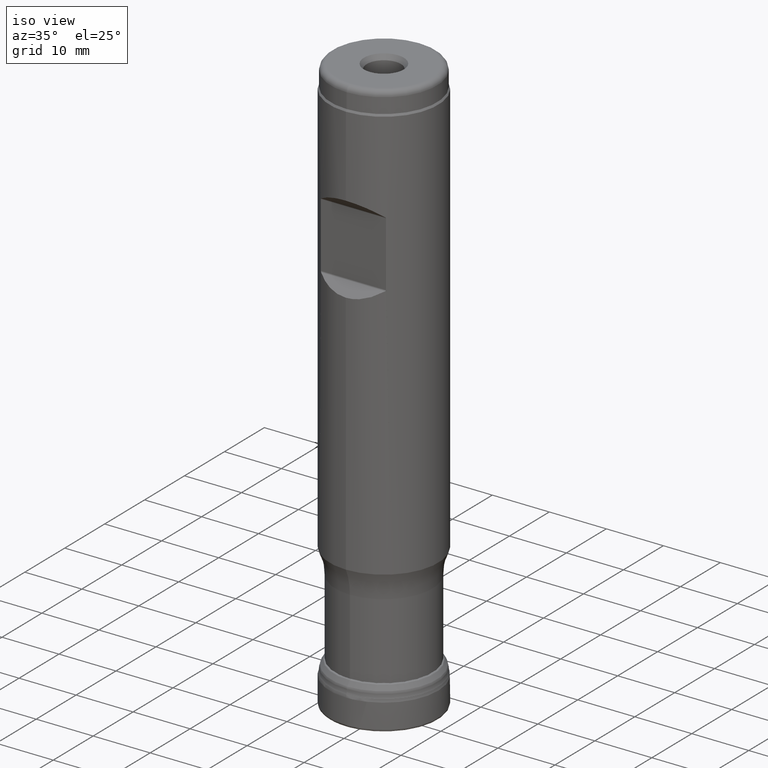
[diagram: clean part render]
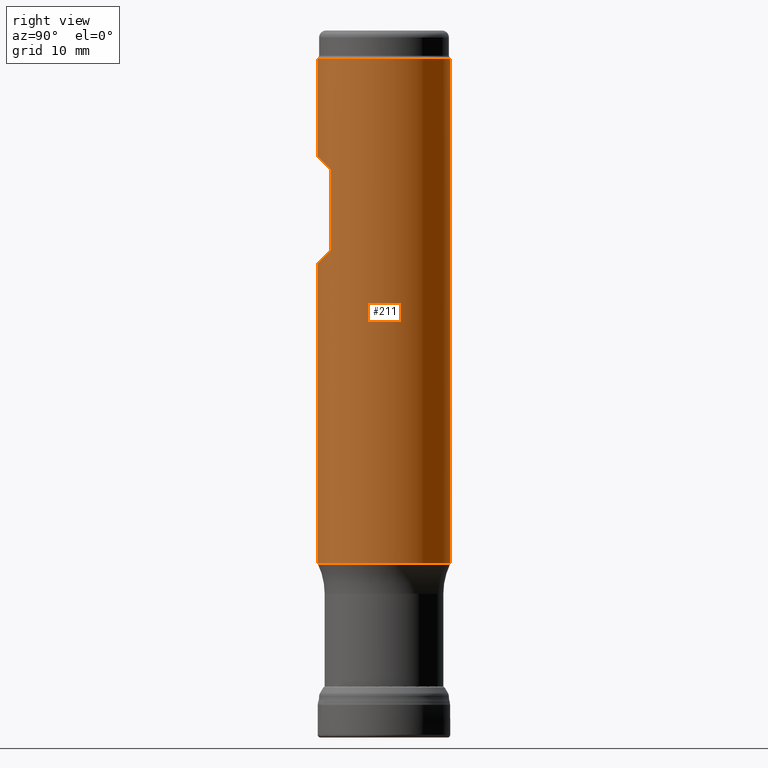
[diagram: tour spotlight — one face highlighted and labeled with its STEP entity id]
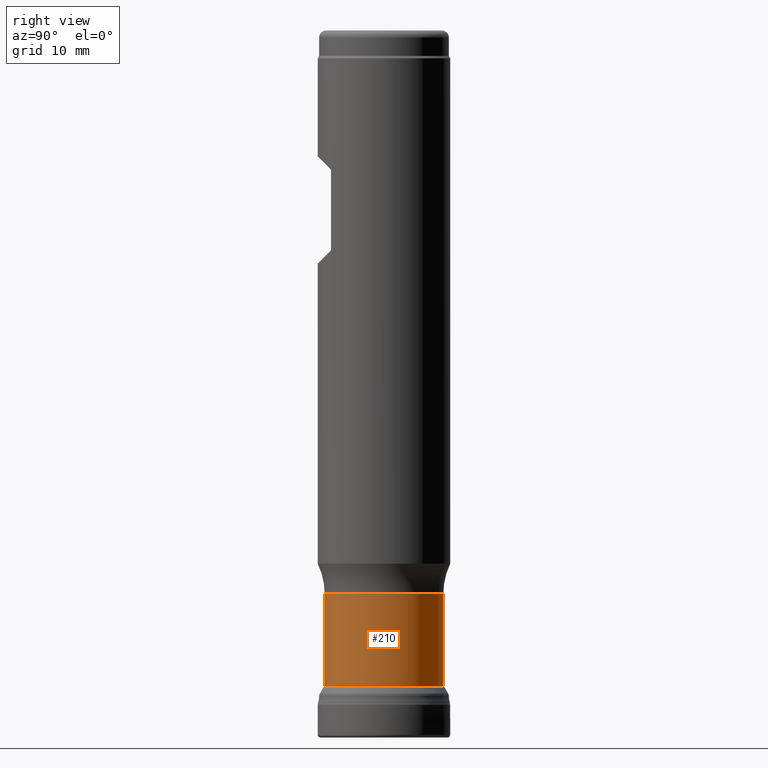
[diagram: tour spotlight — one face highlighted and labeled with its STEP entity id]
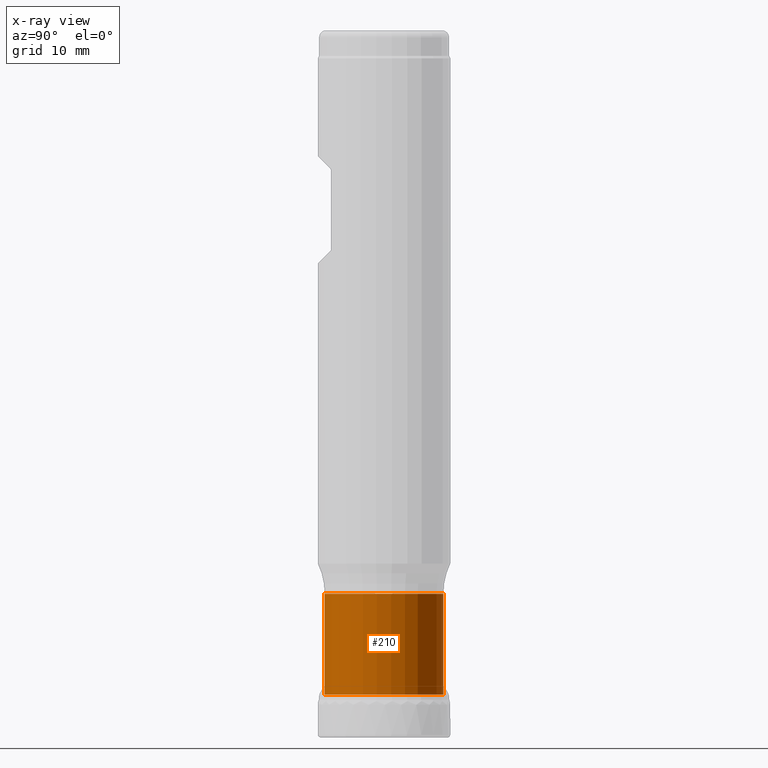
[diagram: x-ray of the same camera — body ghosted, this tour face saturated]
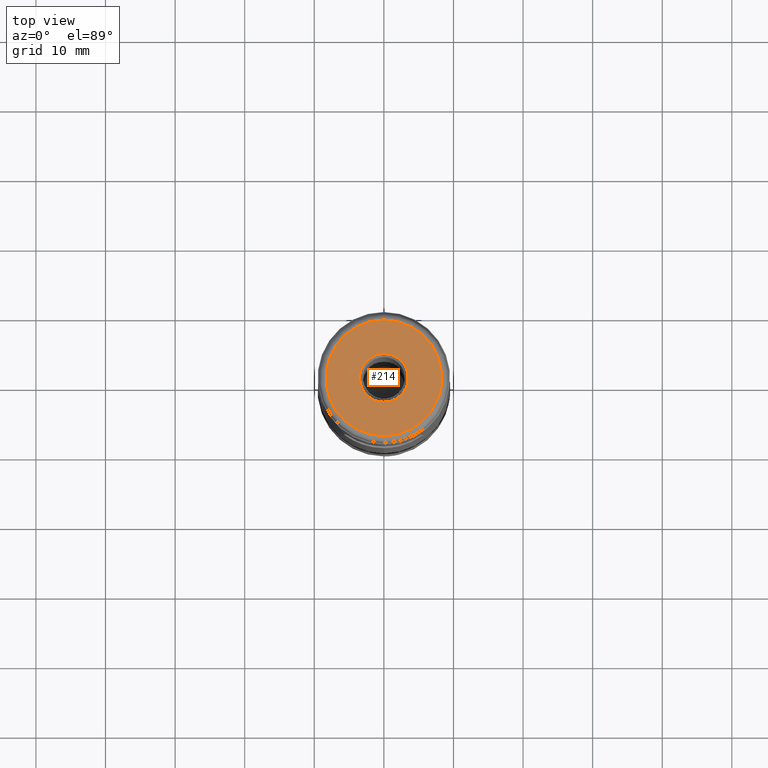
[diagram: tour spotlight — one face highlighted and labeled with its STEP entity id]
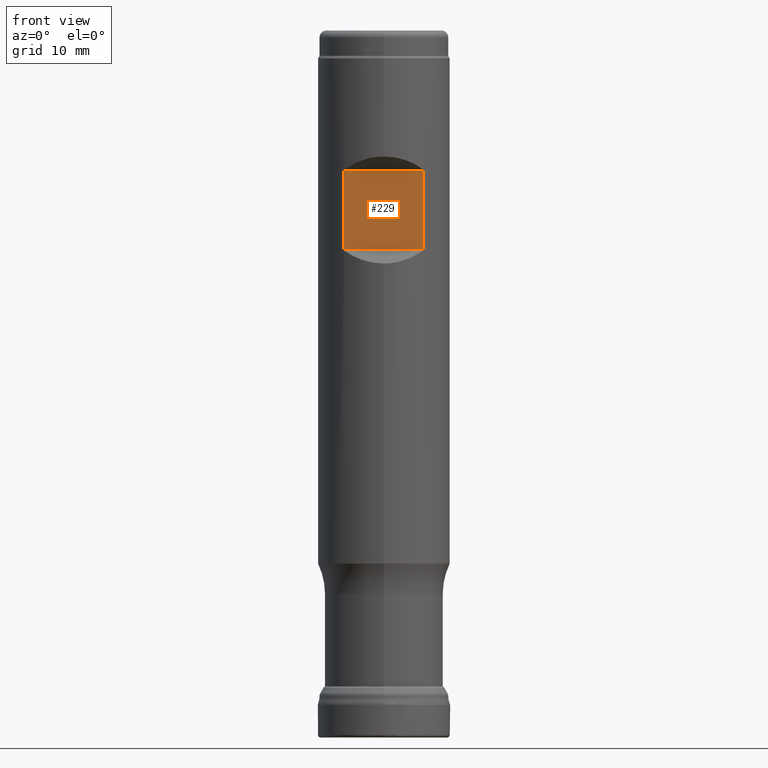
[diagram: tour spotlight — one face highlighted and labeled with its STEP entity id]
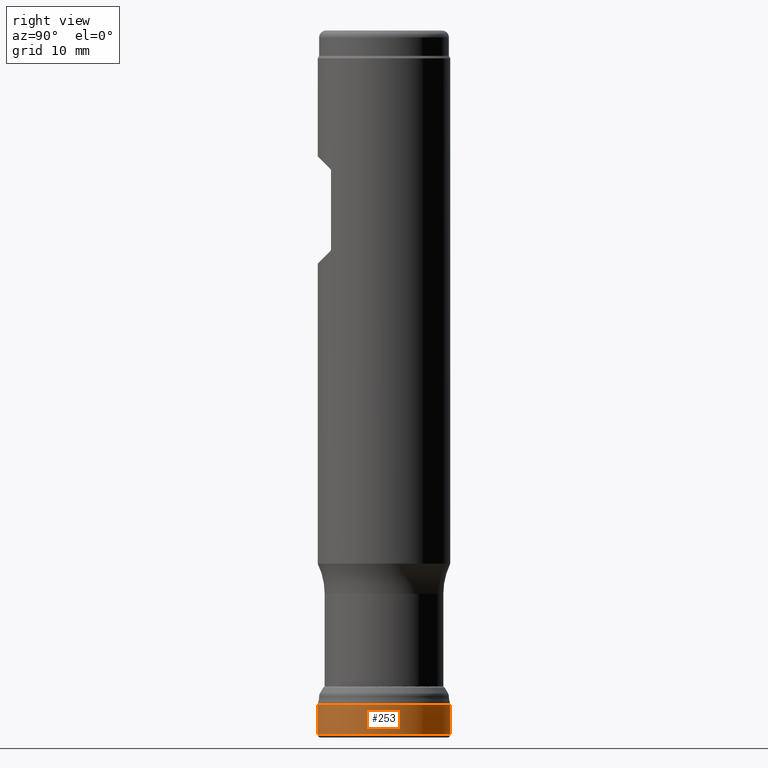
[diagram: tour spotlight — one face highlighted and labeled with its STEP entity id]
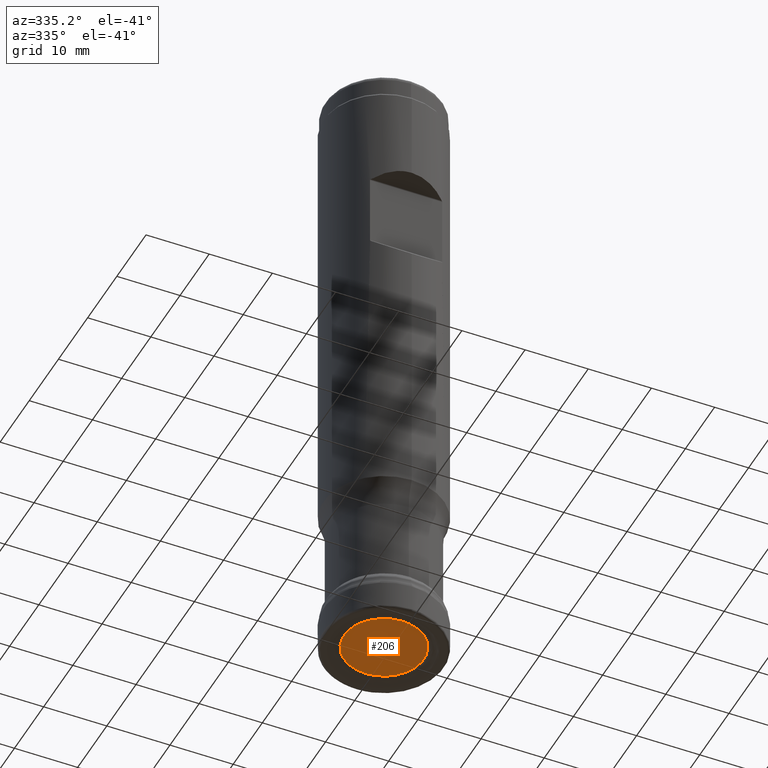
[diagram: tour spotlight — one face highlighted and labeled with its STEP entity id]
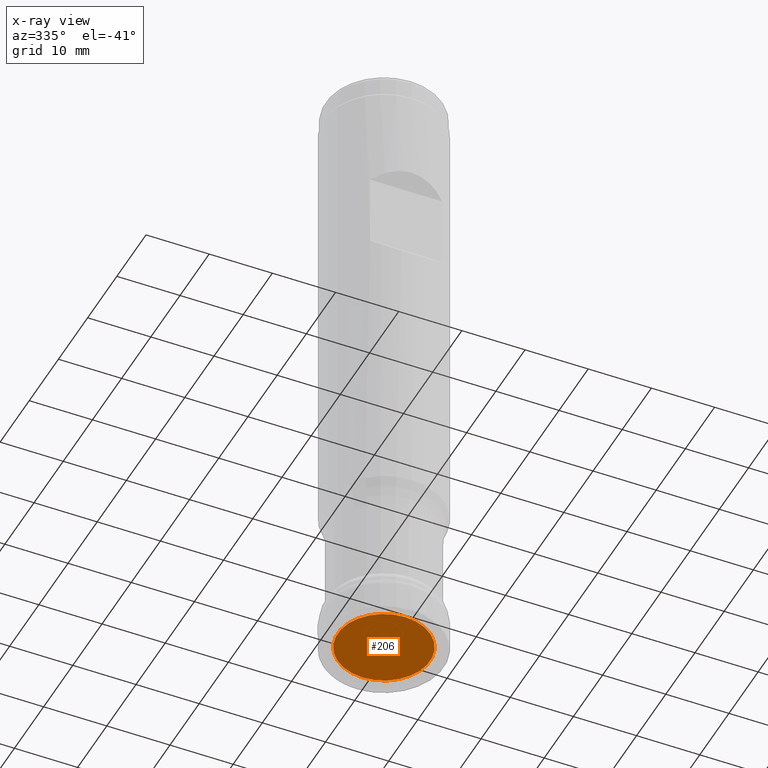
[diagram: x-ray of the same camera — body ghosted, this tour face saturated]
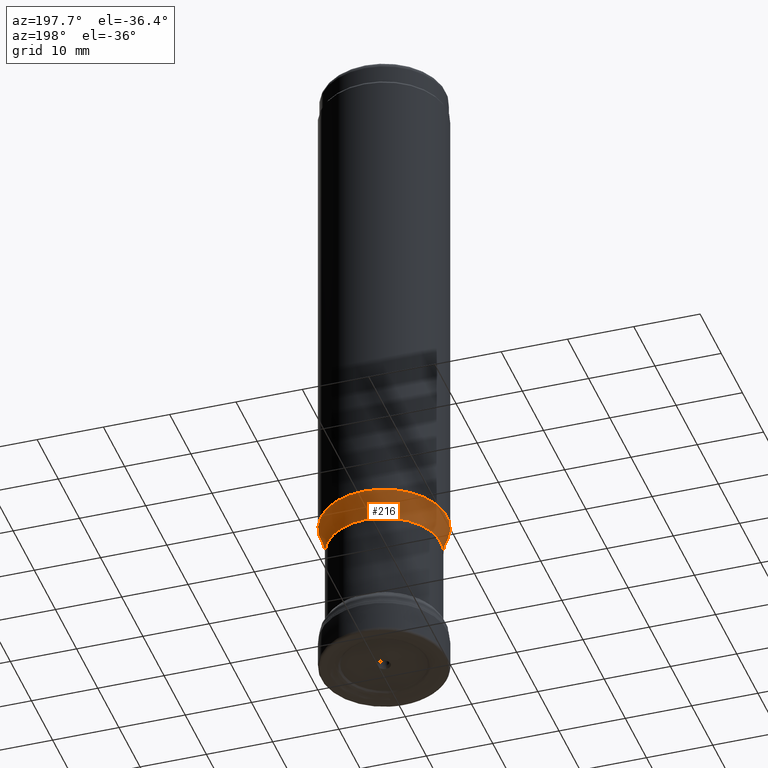
[diagram: tour spotlight — one face highlighted and labeled with its STEP entity id]
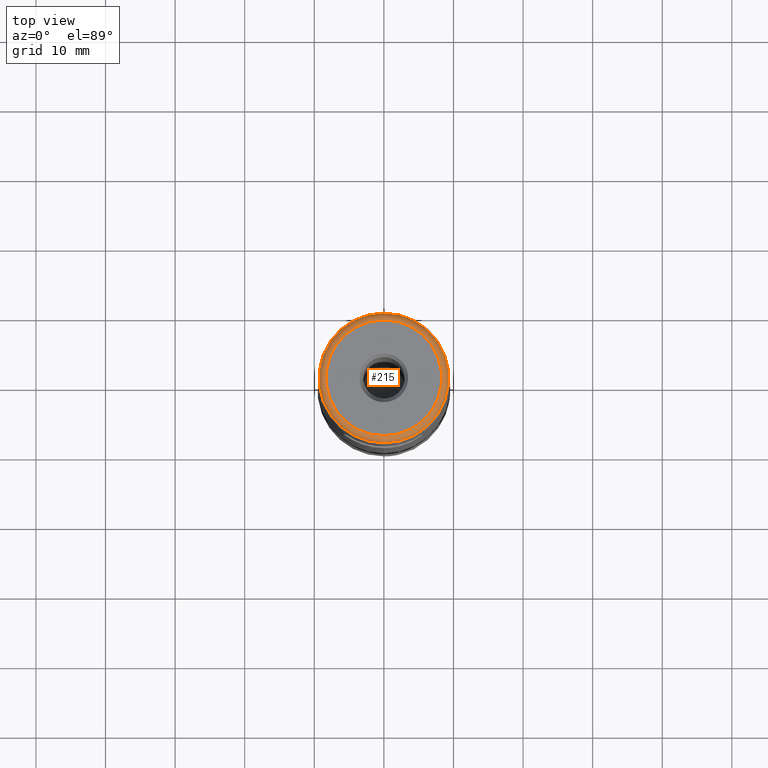
[diagram: tour spotlight — one face highlighted and labeled with its STEP entity id]
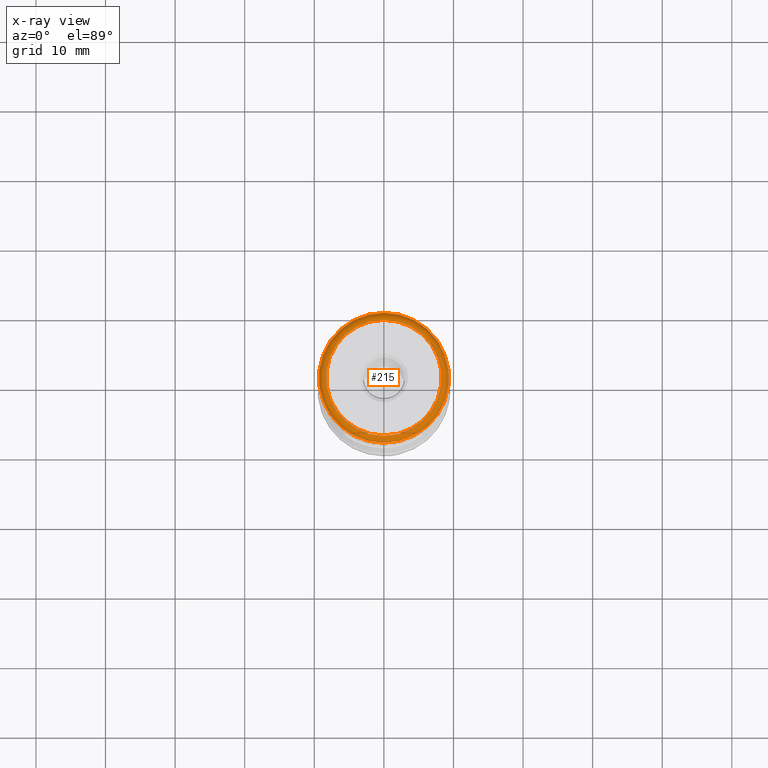
[diagram: x-ray of the same camera — body ghosted, this tour face saturated]
A machine part: a face-by-face anatomy tour. The part has 48 B-rep faces; the first image is the clean iso view, then the 8 largest visible faces are spotlighted one at a time (largest first), each with its STEP entity span.

Face 1 — right view, entity #211. In plain terms, the highlighted cylindrical surface (bore or boss wall) has radius 9.525 mm, axis along (0, 0, 1).
Definition (entity closure, byte-faithful):
#166=LINE('',#1249,#178);
#167=LINE('',#1281,#179);
#178=VECTOR('',#839,1.);
#179=VECTOR('',#842,1.);
#190=ELLIPSE('',#749,13.4703841816037,9.525);
#191=ELLIPSE('',#750,13.4703841816037,9.525);
#193=CYLINDRICAL_SURFACE('',#753,9.525);
#211=ADVANCED_FACE('',(#270,#271,#272),#193,.T.);
#270=FACE_BOUND('',#357,.T.);
#271=FACE_BOUND('',#358,.T.);
#272=FACE_BOUND('',#359,.T.);
#357=EDGE_LOOP('',(#447,#448,#449,#450,#451,#452,#453,#454));
#358=EDGE_LOOP('',(#455));
#359=EDGE_LOOP('',(#456));
#447=ORIENTED_EDGE('',*,*,#607,.F.);
#448=ORIENTED_EDGE('',*,*,#608,.T.);
#449=ORIENTED_EDGE('',*,*,#609,.F.);
#450=ORIENTED_EDGE('',*,*,#610,.T.);
#451=ORIENTED_EDGE('',*,*,#611,.F.);
#452=ORIENTED_EDGE('',*,*,#612,.T.);
#453=ORIENTED_EDGE('',*,*,#613,.F.);
#454=ORIENTED_EDGE('',*,*,#614,.T.);
#455=ORIENTED_EDGE('',*,*,#615,.T.);
#456=ORIENTED_EDGE('',*,*,#616,.F.);
#555=VERTEX_POINT('',#1231);
#556=VERTEX_POINT('',#1232);
#557=VERTEX_POINT('',#1234);
#558=VERTEX_POINT('',#1248);
#559=VERTEX_POINT('',#1250);
#560=VERTEX_POINT('',#1264);
#561=VERTEX_POINT('',#1266);
#562=VERTEX_POINT('',#1280);
#563=VERTEX_POINT('',#1283);
#564=VERTEX_POINT('',#1285);
#607=EDGE_CURVE('',#555,#556,#714,.T.);
#608=EDGE_CURVE('',#555,#557,#190,.T.);
#609=EDGE_CURVE('',#558,#557,#715,.T.);
#610=EDGE_CURVE('',#558,#559,#166,.T.);
#611=EDGE_CURVE('',#560,#559,#716,.T.);
#612=EDGE_CURVE('',#560,#561,#191,.T.);
#613=EDGE_CURVE('',#562,#561,#717,.T.);
#614=EDGE_CURVE('',#562,#556,#167,.T.);
#615=EDGE_CURVE('',#563,#563,#661,.T.);
#616=EDGE_CURVE('',#564,#564,#662,.T.);
#661=CIRCLE('',#751,9.525);
#662=CIRCLE('',#752,9.525);
#714=B_SPLINE_CURVE_WITH_KNOTS('',3,(#1218,#1219,#1220,#1221,#1222,#1223,
#1224,#1225,#1226,#1227,#1228,#1229,#1230),.UNSPECIFIED.,.F.,.F.,(4,3,3,
3,4),(0.,0.4200856820837,0.704835594463845,0.94160956845223,1.),
 .UNSPECIFIED.);
#715=B_SPLINE_CURVE_WITH_KNOTS('',3,(#1235,#1236,#1237,#1238,#1239,#1240,
#1241,#1242,#1243,#1244,#1245,#1246,#1247),.UNSPECIFIED.,.F.,.F.,(4,3,3,
3,4),(0.,0.270271845138804,0.537288913892948,0.949035656420198,1.),
 .UNSPECIFIED.);
#716=B_SPLINE_CURVE_WITH_KNOTS('',3,(#1251,#1252,#1253,#1254,#1255,#1256,
#1257,#1258,#1259,#1260,#1261,#1262,#1263),.UNSPECIFIED.,.F.,.F.,(4,3,3,
3,4),(0.,0.420085682083729,0.704835594463853,0.941609568452283,1.),
 .UNSPECIFIED.);
#717=B_SPLINE_CURVE_WITH_KNOTS('',3,(#1267,#1268,#1269,#1270,#1271,#1272,
#1273,#1274,#1275,#1276,#1277,#1278,#1279),.UNSPECIFIED.,.F.,.F.,(4,3,3,
3,4),(0.,0.270271845138798,0.537288913892924,0.949035656420143,1.),
 .UNSPECIFIED.);
#749=AXIS2_PLACEMENT_3D('',#1233,#837,#838);
#750=AXIS2_PLACEMENT_3D('',#1265,#840,#841);
#751=AXIS2_PLACEMENT_3D('',#1282,#843,#844);
#752=AXIS2_PLACEMENT_3D('',#1284,#845,#846);
#753=AXIS2_PLACEMENT_3D('',#1286,#847,#848);
#837=DIRECTION('',(8.28344032153663E-16,0.707106781186548,0.707106781186547));
#838=DIRECTION('',(-8.28344032153664E-16,-0.707106781186547,0.707106781186548));
#839=DIRECTION('',(0.,-1.17145536458252E-15,-1.));
#840=DIRECTION('',(-8.28344032153662E-16,0.707106781186547,-0.707106781186548));
#841=DIRECTION('',(-8.28344032153661E-16,0.707106781186548,0.707106781186547));
#842=DIRECTION('',(0.,1.17145536458252E-15,1.));
#843=DIRECTION('',(0.,1.17145536458252E-15,1.));
#844=DIRECTION('',(0.,-1.,1.09273919746571E-15));
#845=DIRECTION('',(0.,1.17145536458252E-15,1.));
#846=DIRECTION('',(0.,-1.,1.45698559662094E-15));
#847=DIRECTION('',(0.,1.17145536458252E-15,1.));
#848=DIRECTION('',(0.,-1.,1.17145536458252E-15));
#1218=CARTESIAN_POINT('',(-5.59592677080377,-7.70786796564395,81.682192965644));
#1219=CARTESIAN_POINT('',(-5.6222115577477,-7.68878516044023,81.6631101604403));
#1220=CARTESIAN_POINT('',(-5.64696502143131,-7.67059625429809,81.6397848665104));
#1221=CARTESIAN_POINT('',(-5.66723209759281,-7.65559307643845,81.6117965258745));
#1222=CARTESIAN_POINT('',(-5.68100804248755,-7.64539511054572,81.5927722800868));
#1223=CARTESIAN_POINT('',(-5.6929264360133,-7.63651250653302,81.5711557461274));
#1224=CARTESIAN_POINT('',(-5.70131550952228,-7.63024419405298,81.5477884870199));
#1225=CARTESIAN_POINT('',(-5.70829409173939,-7.62502980012049,81.5283500664726));
#1226=CARTESIAN_POINT('',(-5.71292603103938,-7.62155526871674,81.5072390521964));
#1227=CARTESIAN_POINT('',(-5.71443347996331,-7.62042485712397,81.4860213125762));
#1228=CARTESIAN_POINT('',(-5.71481034584623,-7.62014225148726,81.4807168262691));
#1229=CARTESIAN_POINT('',(-5.71499999999999,-7.61999999999991,81.475386292198));
#1230=CARTESIAN_POINT('',(-5.71499999999999,-7.61999999999991,81.4700609312881));
#1231=CARTESIAN_POINT('',(-5.59592677080377,-7.70786796564395,81.682192965644));
#1232=CARTESIAN_POINT('',(-5.71499999999999,-7.61999999999991,81.4700609312881));
#1233=CARTESIAN_POINT('',(0.,8.66576198626211E-14,73.974325));
#1234=CARTESIAN_POINT('',(5.59592677080377,-7.70786796564395,81.682192965644));
#1235=CARTESIAN_POINT('',(5.71499999999999,-7.61999999999991,81.4700609312881));
#1236=CARTESIAN_POINT('',(5.71499999999999,-7.61999999999991,81.494288252118));
#1237=CARTESIAN_POINT('',(5.7108704049519,-7.62310095081483,81.5188882596745));
#1238=CARTESIAN_POINT('',(5.70353489745539,-7.62858536515828,81.5413175843116));
#1239=CARTESIAN_POINT('',(5.69625016501046,-7.634031817381,81.5635916572342));
#1240=CARTESIAN_POINT('',(5.68572577772934,-7.64188349180198,81.5844193638222));
#1241=CARTESIAN_POINT('',(5.67338793880575,-7.65103223727439,81.6029381024441));
#1242=CARTESIAN_POINT('',(5.65444134745877,-7.66508150010533,81.6313763869041));
#1243=CARTESIAN_POINT('',(5.63079309493606,-7.68249777475853,81.6553135800906));
#1244=CARTESIAN_POINT('',(5.60550989399514,-7.70090149452134,81.6749898089434));
#1245=CARTESIAN_POINT('',(5.60234712819181,-7.70320368148161,81.6774511786054));
#1246=CARTESIAN_POINT('',(5.59915154217825,-7.70552677550621,81.6798517755063));
#1247=CARTESIAN_POINT('',(5.59592677080377,-7.70786796564395,81.682192965644));
#1248=CARTESIAN_POINT('',(5.71499999999999,-7.61999999999991,81.4700609312881));
#1249=CARTESIAN_POINT('',(5.71499999999999,-7.62000000000001,8.92648987811884E-15));
#1250=CARTESIAN_POINT('',(5.71499999999999,-7.61999999999992,70.1361890687119));
#1251=CARTESIAN_POINT('',(5.59592677080378,-7.70786796564396,69.924057034356));
#1252=CARTESIAN_POINT('',(5.62221155774771,-7.68878516044023,69.9431398395597));
#1253=CARTESIAN_POINT('',(5.64696502143132,-7.67059625429809,69.9664651334896));
#1254=CARTESIAN_POINT('',(5.66723209759282,-7.65559307643845,69.9944534741256));
#1255=CARTESIAN_POINT('',(5.68100804248756,-7.64539511054573,70.0134777199133));
#1256=CARTESIAN_POINT('',(5.6929264360133,-7.63651250653302,70.0350942538726));
#1257=CARTESIAN_POINT('',(5.70131550952228,-7.63024419405299,70.0584615129801));
#1258=CARTESIAN_POINT('',(5.7082940917394,-7.6250298001205,70.0778999335275));
#1259=CARTESIAN_POINT('',(5.71292603103938,-7.62155526871675,70.0990109478036));
#1260=CARTESIAN_POINT('',(5.71443347996331,-7.62042485712399,70.1202286874239));
#1261=CARTESIAN_POINT('',(5.71481034584623,-7.62014225148727,70.1255331737309));
#1262=CARTESIAN_POINT('',(5.71499999999999,-7.61999999999992,70.130863707802));
#1263=CARTESIAN_POINT('',(5.71499999999999,-7.61999999999992,70.1361890687119));
#1264=CARTESIAN_POINT('',(5.59592677080378,-7.70786796564396,69.924057034356));
#1265=CARTESIAN_POINT('',(0.,9.09423350041182E-14,77.631925));
#1266=CARTESIAN_POINT('',(-5.59592677080377,-7.70786796564396,69.924057034356));
#1267=CARTESIAN_POINT('',(-5.71499999999999,-7.61999999999992,70.1361890687119));
#1268=CARTESIAN_POINT('',(-5.71499999999999,-7.61999999999992,70.111961747882));
#1269=CARTESIAN_POINT('',(-5.7108704049519,-7.62310095081484,70.0873617403255));
#1270=CARTESIAN_POINT('',(-5.70353489745539,-7.62858536515829,70.0649324156884));
#1271=CARTESIAN_POINT('',(-5.69625016501046,-7.63403181738101,70.0426583427658));
#1272=CARTESIAN_POINT('',(-5.68572577772935,-7.64188349180199,70.0218306361779));
#1273=CARTESIAN_POINT('',(-5.67338793880576,-7.6510322372744,70.0033118975559));
#1274=CARTESIAN_POINT('',(-5.65444134745878,-7.66508150010533,69.9748736130959));
#1275=CARTESIAN_POINT('',(-5.63079309493608,-7.68249777475853,69.9509364199094));
#1276=CARTESIAN_POINT('',(-5.60550989399516,-7.70090149452134,69.9312601910567));
#1277=CARTESIAN_POINT('',(-5.60234712819182,-7.70320368148161,69.9287988213947));
#1278=CARTESIAN_POINT('',(-5.59915154217826,-7.70552677550622,69.9263982244937));
#1279=CARTESIAN_POINT('',(-5.59592677080377,-7.70786796564396,69.924057034356));
#1280=CARTESIAN_POINT('',(-5.71499999999999,-7.61999999999992,70.1361890687119));
#1281=CARTESIAN_POINT('',(-5.71499999999999,-7.62000000000001,8.92648987811884E-15));
#1282=CARTESIAN_POINT('',(0.,2.92788868002298E-14,24.9936));
#1283=CARTESIAN_POINT('',(0.,-9.52499999999997,24.9936));
#1284=CARTESIAN_POINT('',(0.,1.14334043583254E-13,97.6));
#1285=CARTESIAN_POINT('',(0.,-9.52499999999988,97.6));
#1286=CARTESIAN_POINT('',(0.,0.,0.));

Face 2 — right view, entity #210. An x-ray twin of the same camera follows (body ghosted, this face saturated) — the face is partly hidden behind the body. In plain terms, the highlighted cylindrical surface (bore or boss wall) has radius 8.525 mm, axis along (0, 0, 1).
Definition (entity closure, byte-faithful):
#192=CYLINDRICAL_SURFACE('',#748,8.525);
#210=ADVANCED_FACE('',(#268,#269),#192,.T.);
#268=FACE_BOUND('',#355,.T.);
#269=FACE_BOUND('',#356,.T.);
#355=EDGE_LOOP('',(#445));
#356=EDGE_LOOP('',(#446));
#445=ORIENTED_EDGE('',*,*,#605,.T.);
#446=ORIENTED_EDGE('',*,*,#606,.T.);
#553=VERTEX_POINT('',#1214);
#554=VERTEX_POINT('',#1216);
#605=EDGE_CURVE('',#553,#553,#659,.T.);
#606=EDGE_CURVE('',#554,#554,#660,.T.);
#659=CIRCLE('',#746,8.525);
#660=CIRCLE('',#747,8.525);
#746=AXIS2_PLACEMENT_3D('',#1213,#831,#832);
#747=AXIS2_PLACEMENT_3D('',#1215,#833,#834);
#748=AXIS2_PLACEMENT_3D('',#1217,#835,#836);
#831=DIRECTION('',(0.,1.17145536458252E-15,1.));
#832=DIRECTION('',(0.,-1.,1.22091974848808E-15));
#833=DIRECTION('',(0.,-1.17145536458252E-15,-1.));
#834=DIRECTION('',(0.,-1.,1.22091974848808E-15));
#835=DIRECTION('',(0.,1.17145536458252E-15,1.));
#836=DIRECTION('',(0.,-1.,1.17145536458252E-15));
#1213=CARTESIAN_POINT('',(0.,7.18518759588573E-15,6.13355644023735));
#1214=CARTESIAN_POINT('',(0.,-8.525,6.13355644023736));
#1215=CARTESIAN_POINT('',(0.,2.4172631249146E-14,20.6347010564593));
#1216=CARTESIAN_POINT('',(0.,-8.52499999999998,20.6347010564593));
#1217=CARTESIAN_POINT('',(0.,0.,0.));

Face 3 — top view, entity #214. In plain terms, the highlighted planar face has unit normal (0, 0, 1).
Definition (entity closure, byte-faithful):
#214=ADVANCED_FACE('',(#277,#278),#256,.T.);
#256=PLANE('',#760);
#277=FACE_BOUND('',#364,.T.);
#278=FACE_BOUND('',#365,.T.);
#364=EDGE_LOOP('',(#461));
#365=EDGE_LOOP('',(#462));
#461=ORIENTED_EDGE('',*,*,#619,.T.);
#462=ORIENTED_EDGE('',*,*,#620,.T.);
#567=VERTEX_POINT('',#1294);
#568=VERTEX_POINT('',#1296);
#619=EDGE_CURVE('',#567,#567,#665,.T.);
#620=EDGE_CURVE('',#568,#568,#666,.T.);
#665=CIRCLE('',#758,3.5);
#666=CIRCLE('',#759,8.325);
#758=AXIS2_PLACEMENT_3D('',#1293,#857,#858);
#759=AXIS2_PLACEMENT_3D('',#1295,#859,#860);
#760=AXIS2_PLACEMENT_3D('',#1297,#861,#862);
#857=DIRECTION('',(0.,-1.17145536458252E-15,-1.));
#858=DIRECTION('',(0.,-1.,0.));
#859=DIRECTION('',(0.,1.17145536458252E-15,1.));
#860=DIRECTION('',(0.,-1.,1.66700153847621E-15));
#861=DIRECTION('',(0.,1.17145536458252E-15,1.));
#862=DIRECTION('',(0.,-1.,1.16573417585641E-15));
#1293=CARTESIAN_POINT('',(0.,1.19019865041584E-13,101.6));
#1294=CARTESIAN_POINT('',(0.,-3.49999999999988,101.6));
#1295=CARTESIAN_POINT('',(0.,1.19019865041584E-13,101.6));
#1296=CARTESIAN_POINT('',(0.,-8.32499999999988,101.6));
#1297=CARTESIAN_POINT('',(0.,1.19019865041584E-13,101.6));

Face 4 — front view, entity #229. In plain terms, the highlighted planar face has unit normal (0, -1, 0).
Definition (entity closure, byte-faithful):
#153=FACE_OUTER_BOUND('',#391,.T.);
#166=LINE('',#1249,#178);
#167=LINE('',#1281,#179);
#169=LINE('',#1325,#181);
#170=LINE('',#1326,#182);
#178=VECTOR('',#839,1.);
#179=VECTOR('',#842,1.);
#181=VECTOR('',#902,1.);
#182=VECTOR('',#903,1.);
#229=ADVANCED_FACE('',(#153),#258,.T.);
#258=PLANE('',#780);
#391=EDGE_LOOP('',(#489,#490,#491,#492));
#489=ORIENTED_EDGE('',*,*,#627,.T.);
#490=ORIENTED_EDGE('',*,*,#614,.F.);
#491=ORIENTED_EDGE('',*,*,#628,.T.);
#492=ORIENTED_EDGE('',*,*,#610,.F.);
#556=VERTEX_POINT('',#1232);
#558=VERTEX_POINT('',#1248);
#559=VERTEX_POINT('',#1250);
#562=VERTEX_POINT('',#1280);
#610=EDGE_CURVE('',#558,#559,#166,.T.);
#614=EDGE_CURVE('',#562,#556,#167,.T.);
#627=EDGE_CURVE('',#558,#556,#169,.T.);
#628=EDGE_CURVE('',#562,#559,#170,.T.);
#780=AXIS2_PLACEMENT_3D('',#1327,#904,#905);
#839=DIRECTION('',(0.,-1.17145536458252E-15,-1.));
#842=DIRECTION('',(0.,1.17145536458252E-15,1.));
#902=DIRECTION('',(-1.,1.37230767120917E-30,1.17145536458252E-15));
#903=DIRECTION('',(1.,-1.37230767120917E-30,-1.17145536458252E-15));
#904=DIRECTION('',(0.,-1.,1.17145536458252E-15));
#905=DIRECTION('',(1.17267306976032E-15,1.17180570802233E-15,1.));
#1232=CARTESIAN_POINT('',(-5.71499999999999,-7.61999999999991,81.4700609312881));
#1248=CARTESIAN_POINT('',(5.71499999999999,-7.61999999999991,81.4700609312881));
#1249=CARTESIAN_POINT('',(5.71499999999999,-7.62000000000001,8.92648987811884E-15));
#1250=CARTESIAN_POINT('',(5.71499999999999,-7.61999999999992,70.1361890687119));
#1280=CARTESIAN_POINT('',(-5.71499999999999,-7.61999999999992,70.1361890687119));
#1281=CARTESIAN_POINT('',(-5.71499999999999,-7.62000000000001,8.92648987811884E-15));
#1325=CARTESIAN_POINT('',(-17.5,-7.61999999999991,81.4700609312881));
#1326=CARTESIAN_POINT('',(-17.5,-7.61999999999992,70.136189068712));
#1327=CARTESIAN_POINT('',(-17.5,-7.61999999999991,81.594325));

Face 5 — right view, entity #253. In plain terms, the highlighted face is a SurfaceOfRevolution surface.
Definition (entity closure, byte-faithful):
#128=SURFACE_OF_REVOLUTION('',#732,#149);
#149=AXIS1_PLACEMENT('',#1520,#981);
#253=ADVANCED_FACE('',(#345,#346),#128,.F.);
#345=FACE_BOUND('',#435,.T.);
#346=FACE_BOUND('',#436,.T.);
#435=EDGE_LOOP('',(#543));
#436=EDGE_LOOP('',(#544));
#543=ORIENTED_EDGE('',*,*,#650,.T.);
#544=ORIENTED_EDGE('',*,*,#630,.F.);
#576=VERTEX_POINT('',#1333);
#596=VERTEX_POINT('',#1495);
#630=EDGE_CURVE('',#576,#576,#672,.T.);
#650=EDGE_CURVE('',#596,#596,#692,.T.);
#672=CIRCLE('',#784,9.525);
#692=CIRCLE('',#804,9.52499996144634);
#732=B_SPLINE_CURVE_WITH_KNOTS('',3,(#1508,#1509,#1510,#1511,#1512,#1513,
#1514,#1515,#1516,#1517,#1518,#1519),.UNSPECIFIED.,.F.,.F.,(4,1,1,1,1,1,
1,1,1,4),(0.,0.221418157861957,0.365983083750147,0.510548009638337,0.655112935526528,
0.799677861414718,0.871960324358813,0.90810155583086,0.944242787302908,
1.),.UNSPECIFIED.);
#784=AXIS2_PLACEMENT_3D('',#1332,#913,#914);
#804=AXIS2_PLACEMENT_3D('',#1494,#978,#979);
#913=DIRECTION('',(0.,1.17145536458252E-15,1.));
#914=DIRECTION('',(0.,-1.,1.18380079725451E-15));
#978=DIRECTION('',(0.,1.17145536458252E-15,1.));
#979=DIRECTION('',(0.,-1.,1.17241810202643E-15));
#981=DIRECTION('',(0.,1.17145536458252E-15,1.));
#1332=CARTESIAN_POINT('',(0.,5.51475913833278E-15,4.70761354214985));
#1333=CARTESIAN_POINT('',(0.,-9.52499999999999,4.70761354214986));
#1494=CARTESIAN_POINT('',(0.,4.59503758430572E-16,0.392250334347418));
#1495=CARTESIAN_POINT('',(0.,-9.52499996144634,0.392250334347429));
#1508=CARTESIAN_POINT('',(9.5159547428001,-0.415006425227774,4.70761354214985));
#1509=CARTESIAN_POINT('',(9.51929208556327,-0.500286222836042,4.38934406938553));
#1510=CARTESIAN_POINT('',(9.52102735637959,-0.641256103537473,3.86323678584861));
#1511=CARTESIAN_POINT('',(9.51103452379058,-0.837885989403761,3.12940667405196));
#1512=CARTESIAN_POINT('',(9.49380400599949,-1.0048731079156,2.50620683981243));
#1513=CARTESIAN_POINT('',(9.46894388524539,-1.17179770165089,1.88324240830767));
#1514=CARTESIAN_POINT('',(9.44474138036131,-1.31078244718041,1.36422288885268));
#1515=CARTESIAN_POINT('',(9.42662871481017,-1.40832114013655,1.00102801226362));
#1516=CARTESIAN_POINT('',(9.41598347962903,-1.46356203996304,0.793393665731034));
#1517=CARTESIAN_POINT('',(9.40604060407074,-1.51413148663002,0.609758411207535));
#1518=CARTESIAN_POINT('',(9.40146109060669,-1.53408446729413,0.474489010616711));
#1519=CARTESIAN_POINT('',(9.39881252843193,-1.54529845691499,0.39225033434742));
#1520=CARTESIAN_POINT('',(0.,0.,0.));

Face 6 — auxiliary view, entity #206. An x-ray twin of the same camera follows (body ghosted, this face saturated) — the face is partly hidden behind the body. In plain terms, the highlighted planar face has unit normal (0, -0, -1).
Definition (entity closure, byte-faithful):
#206=ADVANCED_FACE('',(#260,#261),#254,.T.);
#254=PLANE('',#736);
#260=FACE_BOUND('',#347,.T.);
#261=FACE_BOUND('',#348,.T.);
#347=EDGE_LOOP('',(#437));
#348=EDGE_LOOP('',(#438));
#437=ORIENTED_EDGE('',*,*,#597,.T.);
#438=ORIENTED_EDGE('',*,*,#598,.T.);
#545=VERTEX_POINT('',#1194);
#546=VERTEX_POINT('',#1196);
#597=EDGE_CURVE('',#545,#545,#651,.T.);
#598=EDGE_CURVE('',#546,#546,#652,.T.);
#651=CIRCLE('',#734,1.);
#652=CIRCLE('',#735,7.30051039103006);
#734=AXIS2_PLACEMENT_3D('',#1193,#807,#808);
#735=AXIS2_PLACEMENT_3D('',#1195,#809,#810);
#736=AXIS2_PLACEMENT_3D('',#1197,#811,#812);
#807=DIRECTION('',(0.,1.17145536458252E-15,1.));
#808=DIRECTION('',(0.,-1.,1.19262238973405E-15));
#809=DIRECTION('',(0.,-1.17145536458252E-15,-1.));
#810=DIRECTION('',(0.,1.,-1.17323265139918E-15));
#811=DIRECTION('',(0.,-1.17145536458252E-15,-1.));
#812=DIRECTION('',(0.,1.,-1.17148044737059E-15));
#1193=CARTESIAN_POINT('',(0.,7.61445986978644E-16,0.650000000000003));
#1194=CARTESIAN_POINT('',(0.,-0.999999999999999,0.650000000000004));
#1195=CARTESIAN_POINT('',(0.,7.61445986978645E-16,0.650000000000003));
#1196=CARTESIAN_POINT('',(0.,7.30051039103006,0.649999999999995));
#1197=CARTESIAN_POINT('',(7.56056301521027,7.61445986978645E-16,0.650000000000003));

Face 7 — auxiliary view, entity #216. In plain terms, the highlighted toroidal blend (fillet) surface has major radius 18.525 mm and minor (blend) radius 10 mm.
Definition (entity closure, byte-faithful):
#160=TOROIDAL_SURFACE('',#762,18.525,10.);
#216=ADVANCED_FACE('',(#281,#282),#160,.F.);
#281=FACE_BOUND('',#368,.T.);
#282=FACE_BOUND('',#369,.T.);
#368=EDGE_LOOP('',(#465));
#369=EDGE_LOOP('',(#466));
#465=ORIENTED_EDGE('',*,*,#606,.F.);
#466=ORIENTED_EDGE('',*,*,#615,.F.);
#554=VERTEX_POINT('',#1216);
#563=VERTEX_POINT('',#1283);
#606=EDGE_CURVE('',#554,#554,#660,.T.);
#615=EDGE_CURVE('',#563,#563,#661,.T.);
#660=CIRCLE('',#747,8.525);
#661=CIRCLE('',#751,9.525);
#747=AXIS2_PLACEMENT_3D('',#1215,#833,#834);
#751=AXIS2_PLACEMENT_3D('',#1282,#843,#844);
#762=AXIS2_PLACEMENT_3D('',#1299,#865,#866);
#833=DIRECTION('',(0.,-1.17145536458252E-15,-1.));
#834=DIRECTION('',(0.,-1.,1.22091974848808E-15));
#843=DIRECTION('',(0.,1.17145536458252E-15,1.));
#844=DIRECTION('',(0.,-1.,1.09273919746571E-15));
#865=DIRECTION('',(0.,1.17145536458252E-15,1.));
#866=DIRECTION('',(0.,-1.,1.2162828928847E-15));
#1215=CARTESIAN_POINT('',(0.,2.4172631249146E-14,20.6347010564593));
#1216=CARTESIAN_POINT('',(0.,-8.52499999999998,20.6347010564593));
#1282=CARTESIAN_POINT('',(0.,2.92788868002298E-14,24.9936));
#1283=CARTESIAN_POINT('',(0.,-9.52499999999997,24.9936));
#1299=CARTESIAN_POINT('',(0.,2.4172631249146E-14,20.6347010564593));

Face 8 — top view, entity #215. An x-ray twin of the same camera follows (body ghosted, this face saturated) — the face is partly hidden behind the body. In plain terms, the highlighted toroidal blend (fillet) surface has major radius 8.325 mm and minor (blend) radius 1 mm.
Definition (entity closure, byte-faithful):
#159=TOROIDAL_SURFACE('',#761,8.325,1.);
#215=ADVANCED_FACE('',(#279,#280),#159,.T.);
#279=FACE_BOUND('',#366,.T.);
#280=FACE_BOUND('',#367,.T.);
#366=EDGE_LOOP('',(#463));
#367=EDGE_LOOP('',(#464));
#463=ORIENTED_EDGE('',*,*,#618,.F.);
#464=ORIENTED_EDGE('',*,*,#620,.F.);
#566=VERTEX_POINT('',#1291);
#568=VERTEX_POINT('',#1296);
#618=EDGE_CURVE('',#566,#566,#664,.T.);
#620=EDGE_CURVE('',#568,#568,#666,.T.);
#664=CIRCLE('',#756,9.325);
#666=CIRCLE('',#759,8.325);
#756=AXIS2_PLACEMENT_3D('',#1290,#853,#854);
#759=AXIS2_PLACEMENT_3D('',#1295,#859,#860);
#761=AXIS2_PLACEMENT_3D('',#1298,#863,#864);
#853=DIRECTION('',(0.,-1.17145536458252E-15,-1.));
#854=DIRECTION('',(0.,-1.,1.48823461746E-15));
#859=DIRECTION('',(0.,1.17145536458252E-15,1.));
#860=DIRECTION('',(0.,-1.,1.66700153847621E-15));
#863=DIRECTION('',(0.,1.17145536458252E-15,1.));
#864=DIRECTION('',(0.,-1.,1.48823461746E-15));
#1290=CARTESIAN_POINT('',(0.,1.17848409677002E-13,100.6));
#1291=CARTESIAN_POINT('',(0.,-9.32499999999988,100.6));
#1295=CARTESIAN_POINT('',(0.,1.19019865041584E-13,101.6));
#1296=CARTESIAN_POINT('',(0.,-8.32499999999988,101.6));
#1298=CARTESIAN_POINT('',(0.,1.17848409677002E-13,100.6));